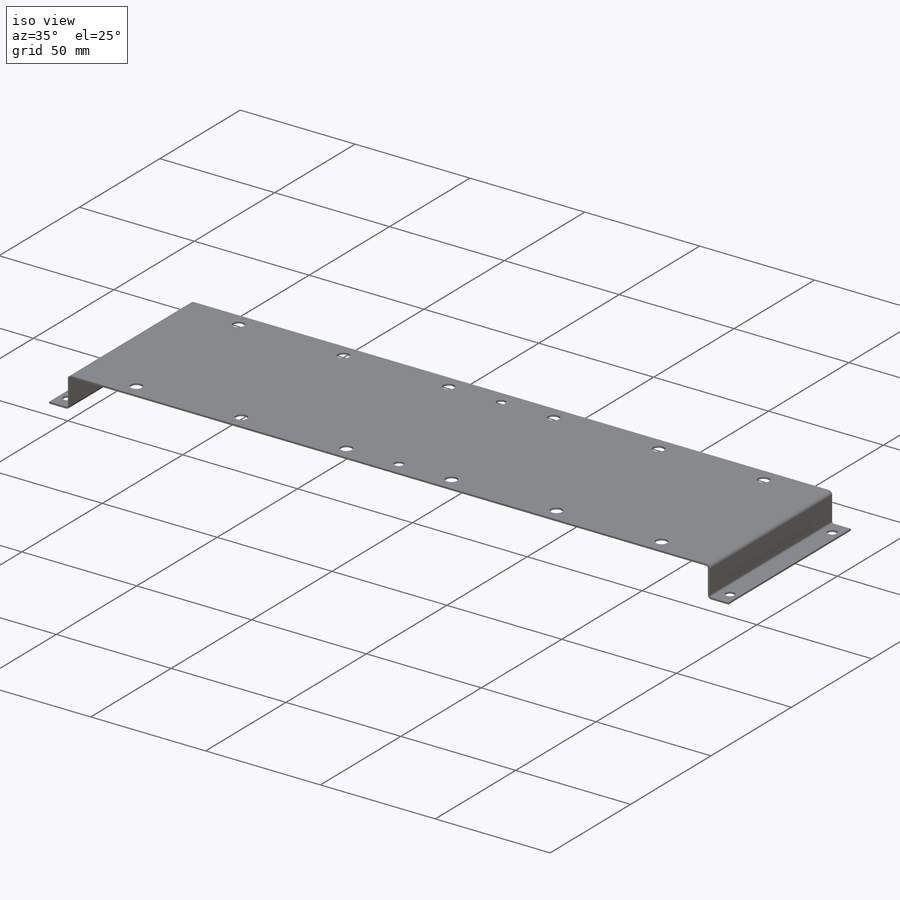
[diagram: iso view]
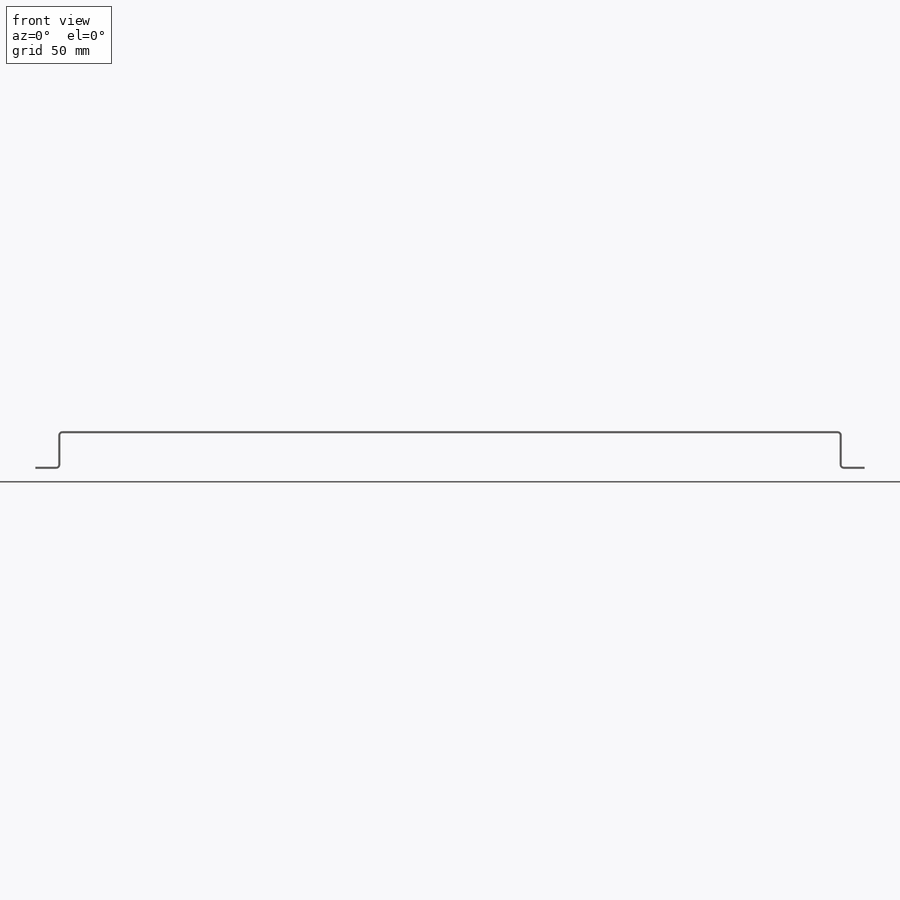
[diagram: front view]
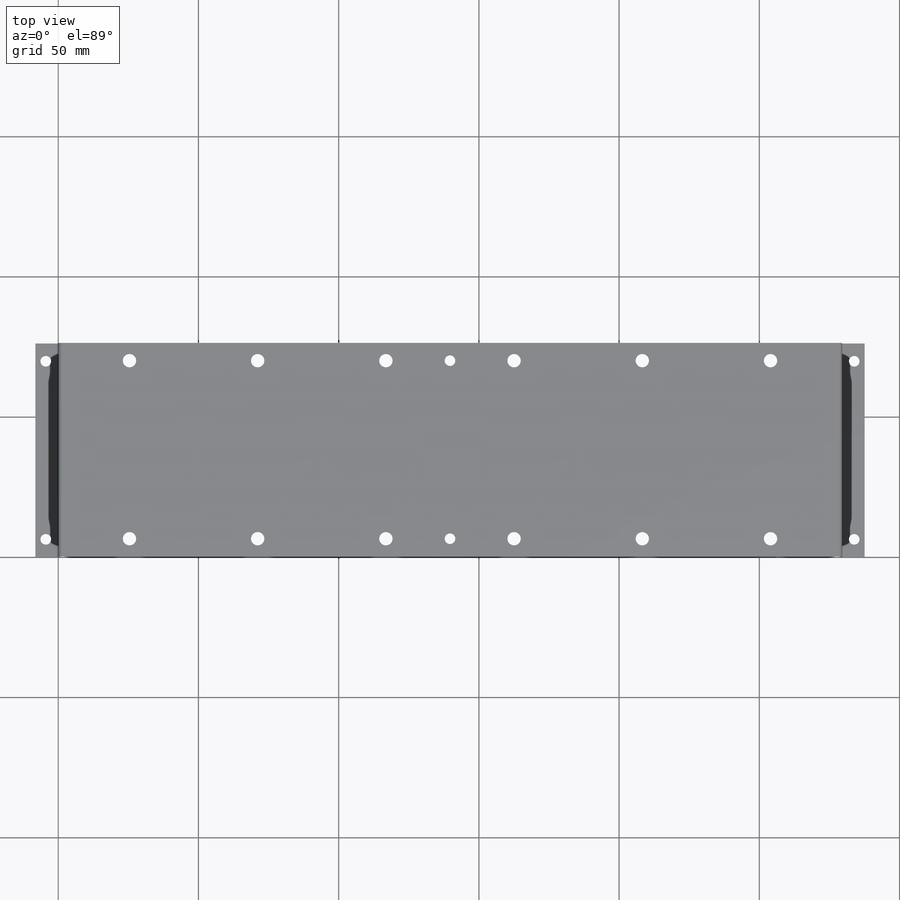
[diagram: top view]
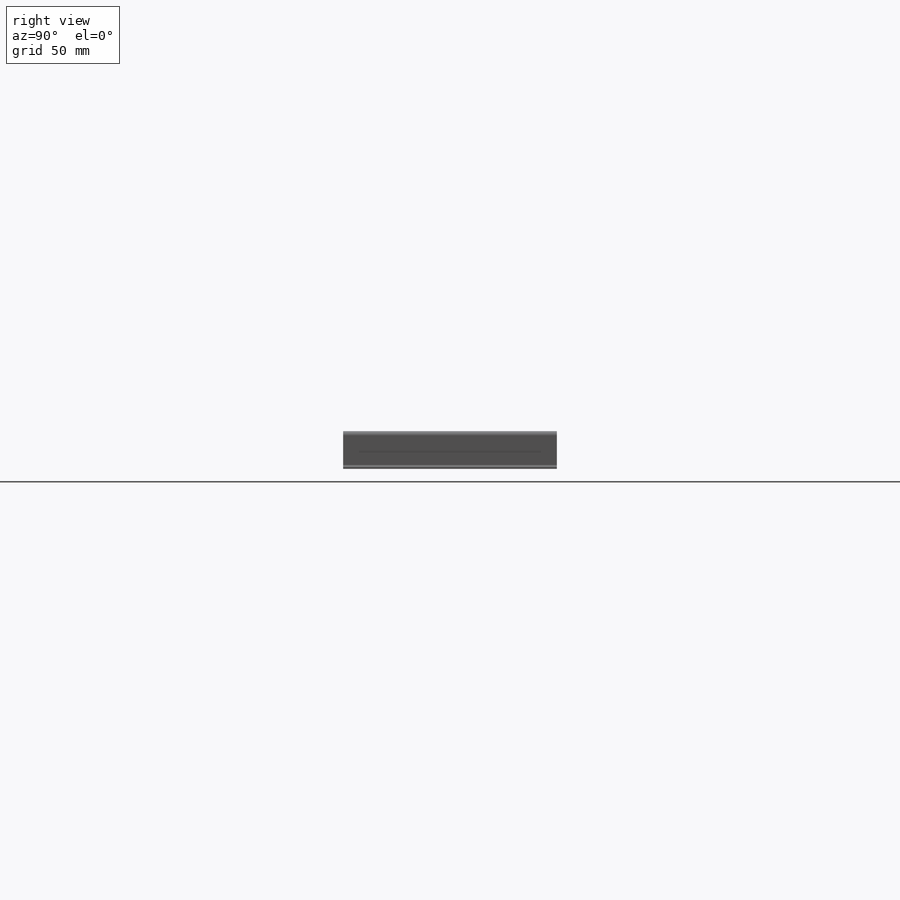
[diagram: right view]
SOLIDWORKS PART (.sldprt)
format: sldprt  version: not decoded by parser v0  size: 441,344 bytes
history: native  units: mm
features: sketch x27, sheet_metal_op x12, mirror x8, hole x3, material x1, plane x1, pattern_linear x1 + 17 further entries (+12 scaffold rows collapsed; 8 parser-record rows omitted)
feature tree (90):
  scaffold x12  (default folders/planes/origin — collapsed)
  material  "Material <not specified>"
  sketch  "Sketch1"  dims[c1.D1=76.2mm c1.D2=279.4mm c2.D1=0.7366mm c2.D2=0.5 c2.D3=0.0mm c2.D6=500.0mm]
  sheet_metal_op  "Base-Flange1"
  plane  "Plane2"
  sketch  "Sketch8"  dims[c1.D1=11.2268mm c2.D1=0.7366mm c2.D4=90.0deg c2.D5=1.0 c2.D8=0.3683mm c2.D9=0.3683mm c3.D1=0.7366mm c3.D2=500.0mm c3.D3=0.0mm c3.D6=10.0mm c3.D7=11.2268mm c3.Edge-Flange2=0.0]
  sketch  "Sketch11"
  sheet_metal_op  "EdgeBend2"
  hole  "3/32 (0.09375) Diameter Hole1"  Diameter=4.7625mm Depth=0.7366mm
  sketch  "Sketch22"  dims[D1=25.4mm D2=6.35mm]
  sketch  "Sketch21"  dims[hole-wizard template sketch: 47 standard entries collapsed; hole parameters kept: c15.Hole Depth=0.7366mm c15.D3=~14.816244mm c15.Drill Angle=118.0deg]
  hole  "#6 Clearance Hole1"  Diameter=3.7973mm Depth=0.7366mm
  sketch  "Sketch13"  dims[D1=63.5mm D2=6.35mm]
  sketch  "Sketch12"  dims[hole-wizard template sketch: 60 standard entries collapsed; hole parameters kept: c18.Thru Hole Depth=0.7366mm]
  pattern_linear  "LPattern1"  Count1=6 Count2=2 Spacing1=45.72mm Spacing2=63.5mm
  mirror  "Mirror2"
  sheet_metal_op  "MirrorBend3"
  sheet_metal_op  "MirrorBend4"
  hole  "#6 Clearance Hole2"  Diameter=3.7973mm Depth=13.4366mm
  sketch  "Sketch24"  dims[D1=63.5mm]
  sketch  "Sketch23"  dims[hole-wizard template sketch: 60 standard entries collapsed; hole parameters kept: c18.Thru Hole Depth=13.4366mm]
  sketch  "Bend-Lines1"
  sketch  "Bounding-Box1"
  sheet_metal_op  "Sheet-Metal(1)"
  "Flat-Pattern(1)"
  sketch  "Bend-Lines2"
  sketch  "Bounding-Box2"
  parser-record x8  (decoder bookkeeping rows leaked as tree rows — omitted from the tree; the rows remain in map.json)
  mirror  "Sheet-Metal(2)"
  sheet_metal_op  "Flat-Pattern(1)"
  sketch  "Bend-Lines2"
  sketch  "Bounding-Box2"
  mirror  "Sheet-Metal(3)"
  sheet_metal_op  "Flat-Pattern(1)"
  sketch  "Bend-Lines2"
  sketch  "Bounding-Box2"
  "Flatten-<EdgeBend1>1"
  "Flatten-<EdgeBend2>1"
  mirror  "Sheet-Metal(4)"
  sheet_metal_op  "Flat-Pattern(1)"
  sketch  "Bend-Lines2"
  sketch  "Bounding-Box2"
  "Flatten-<EdgeBend1>1"
  "Flatten-<EdgeBend2>1"
  mirror  "Sheet-Metal(11)"
  sheet_metal_op  "Flat-Pattern(1)"
  sketch  "Bend-Lines2"
  sketch  "Bounding-Box2"
  "Flatten-<EdgeBend1>1"
  "Flatten-<EdgeBend2>1"
  mirror  "Sheet-Metal(12)"
  sheet_metal_op  "Flat-Pattern(1)"
  sketch  "Bend-Lines2"
  sketch  "Bounding-Box2"
  "Flatten-<EdgeBend1>1"
  "Flatten-<EdgeBend2>1"
  mirror  "Sheet-Metal(14)"
  sheet_metal_op  "Flat-Pattern(1)"
  sketch  "Bend-Lines2"
  sketch  "Bounding-Box2"
  "Flatten-<EdgeBend1>1"
  "Flatten-<EdgeBend2>1"
  "Flatten-<MirrorBend3>1"
  "Flatten-<MirrorBend4>1"
  mirror  "Sheet-Metal(15)"
  sheet_metal_op  "Flat-Pattern(1)"
  sketch  "Bend-Lines2"
  sketch  "Bounding-Box2"
  "Flatten-<EdgeBend1>1"
  "Flatten-<EdgeBend2>1"
  "Flatten-<MirrorBend3>1"
  "Flatten-<MirrorBend4>1"
decode coverage: 12 of 51 modeling features carry decoded parameters; 17 rows unclassified (native names shown)
note: ~ marks probable driven/reference dimensions
note: suppression state not decoded; provenance and decode notes live in map.json
